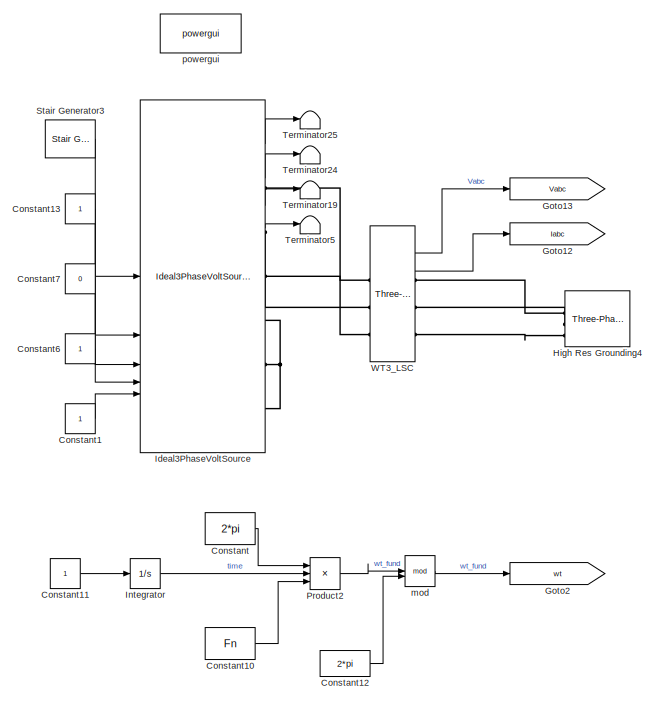
[diagram: root canvas - part 1/2, middle left region]
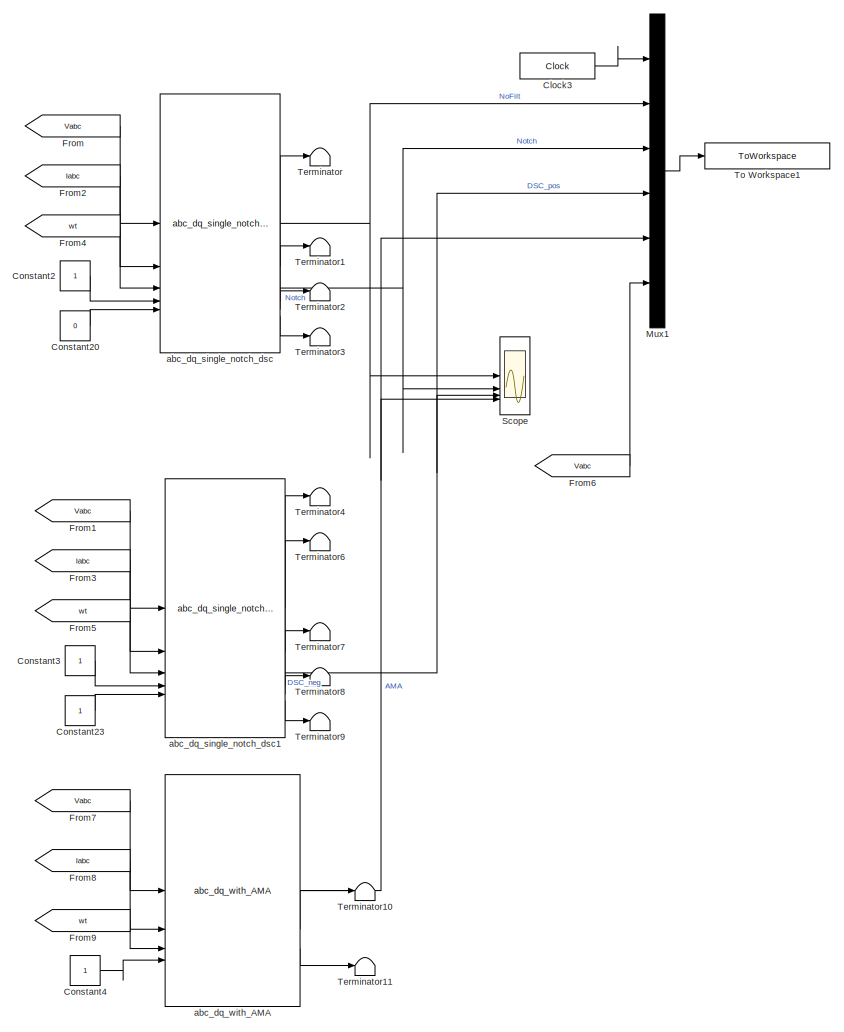
[diagram: root canvas - part 2/2, right side, full height]
MODEL slx_d988a26c9a00
KIND model
CONFIG AbsTol = auto
CONFIG EnableMultiTasking = off
CONFIG FixedStep = Ts
CONFIG MaxStep = auto
CONFIG MinStep = auto
CONFIG RelTol = 1e-3
CONFIG SampleTimeConstraint = Unconstrained
CONFIG SolverName = ode8
CONFIG StartTime = 0.0
CONFIG StopTime = Ttot
BLOCK [Clock] Clock3
  Decimation = 1
  DisplayTime = on
BLOCK [Constant] Constant
  Value = 2*pi
BLOCK [Constant] Constant1
BLOCK [Constant] Constant10
  Value = Fn
BLOCK [Constant] Constant11
BLOCK [Constant] Constant12
  Value = 2*pi
BLOCK [Constant] Constant13
BLOCK [Constant] Constant2
BLOCK [Constant] Constant20
  Value = 0
BLOCK [Constant] Constant23
BLOCK [Constant] Constant3
BLOCK [Constant] Constant4
BLOCK [Constant] Constant6
BLOCK [Constant] Constant7
  Value = 0
BLOCK [From] From
  GotoTag = Vabc
BLOCK [From] From1
  GotoTag = Vabc
BLOCK [From] From2
  GotoTag = Iabc
BLOCK [From] From3
  GotoTag = Iabc
BLOCK [From] From4
  GotoTag = wt
BLOCK [From] From5
  GotoTag = wt
BLOCK [From] From6
  GotoTag = Vabc
BLOCK [From] From7
  GotoTag = Vabc
BLOCK [From] From8
  GotoTag = Iabc
BLOCK [From] From9
  GotoTag = wt
BLOCK [Goto] Goto12
  GotoTag = Iabc
BLOCK [Goto] Goto13
  GotoTag = Vabc
BLOCK [Goto] Goto2
  GotoTag = wt
BLOCK [Reference] High Res Grounding4  REF=spsThreePhaseParallelRLCLoadLib/Three-Phase
Parallel RLC Load
  AttributesFormatString = \n
  LibrarySourceBlock = sps_lib/Passives/Three-Phase\nParallel RLC Load
  NameLocation = top
  SourceBlock = spsThreePhaseParallelRLCLoadLib/Three-Phase\nParallel RLC Load
  SourceType = Three-Phase Parallel RLC Load
BLOCK [Reference] Ideal3PhaseVoltSource  REF=DSCdq_Library/Ideal3PhaseVoltSource
  SourceBlock = DSCdq_Library/Ideal3PhaseVoltSource
  SourceType = Three-phase ideal voltage source
BLOCK [Integrator] Integrator
BLOCK [Mux] Mux1
  DisplayOption = bar
  Inputs = 6
BLOCK [Product] Product2
  Inputs = 3
BLOCK [Scope] Scope
  Floating = off
  NumInputPorts = 4
  ScopeSpecificationString = Simulink.scopes.TimeScopeBlockCfg('CurrentConfiguration', extmgr.ConfigurationSet(extmgr.Configuration('Core','General UI',true),extmgr.Configuration('Core','Source UI',true),extmgr.Configuration('Sources','WiredSimulink',true),extmgr.Configuration('Visuals','Time Domain',true,'SerializedDisplays',{struct('MinYLimReal','-0.52811','MaxYLimReal','1.16979','YLabelReal','','MinYLimMag','0.00000','MaxY...<+1500ch>
BLOCK [Reference] Stair Generator3  REF=spsStairGeneratorLib/Stair
Generator
  LibrarySourceBlock = sps_lib/Sources/Signal Generator Sources/Stair\nGenerator
  SourceBlock = spsStairGeneratorLib/Stair\nGenerator
  SourceType = Stair Generator
BLOCK [Terminator] Terminator
BLOCK [Terminator] Terminator1
BLOCK [Terminator] Terminator10
BLOCK [Terminator] Terminator11
BLOCK [Terminator] Terminator19
BLOCK [Terminator] Terminator2
BLOCK [Terminator] Terminator24
BLOCK [Terminator] Terminator25
BLOCK [Terminator] Terminator3
BLOCK [Terminator] Terminator4
BLOCK [Terminator] Terminator5
BLOCK [Terminator] Terminator6
BLOCK [Terminator] Terminator7
BLOCK [Terminator] Terminator8
BLOCK [Terminator] Terminator9
BLOCK [ToWorkspace] To Workspace1
  FixptAsFi = on
  MaxDataPoints = inf
  SampleTime = Ts_control
  Save2DSignal = 2-D array (concatenate along first dimension)
  VariableName = ShortPulse_Raw
BLOCK [Reference] WT3_LSC  REF=spsThreePhaseVIMeasurementLib/Three-Phase
V-I Measurement
  LibrarySourceBlock = sps_lib/Sensors and Measurements/Three-Phase\nV-I Measurement
  SourceBlock = spsThreePhaseVIMeasurementLib/Three-Phase\nV-I Measurement
  SourceType = Three-Phase VI Measurement
BLOCK [Reference] abc_dq_single_notch_dsc  REF=DSCdq_Library/abc_dq_single_notch_dsc
  SourceBlock = DSCdq_Library/abc_dq_single_notch_dsc
  SourceType = abc->dq with Matlab
BLOCK [Reference] abc_dq_single_notch_dsc1  REF=DSCdq_Library/abc_dq_single_notch_dsc
  SourceBlock = DSCdq_Library/abc_dq_single_notch_dsc
  SourceType = abc->dq with Matlab
BLOCK [Reference] abc_dq_with_AMA  REF=PhD_Library/Offshore_Oil_and_Wind/abc_dq_with_AMA
  SourceBlock = PhD_Library/Offshore_Oil_and_Wind/abc_dq_with_AMA
  SourceType = abc->dq with Matlab
BLOCK [Math] mod
  Operator = mod
  SignedPower = on
BLOCK [Reference] powergui  REF=sps_lib/powergui
  Priority = 1
  SourceBlock = sps_lib/powergui
  SourceType = PSB option menu block
LINE Clock3:1 -> Mux1:1
LINE Constant10:1 -> Product2:3
LINE Constant11:1 -> Integrator:1
LINE Constant12:1 -> mod:2
LINE Constant13:1 -> Ideal3PhaseVoltSource:2
LINE Constant1:1 -> Ideal3PhaseVoltSource:5
LINE Constant20:1 -> abc_dq_single_notch_dsc:5
LINE Constant23:1 -> abc_dq_single_notch_dsc1:5
LINE Constant2:1 -> abc_dq_single_notch_dsc:4
LINE Constant3:1 -> abc_dq_single_notch_dsc1:4
LINE Constant4:1 -> abc_dq_with_AMA:4
LINE Constant6:1 -> Ideal3PhaseVoltSource:4
LINE Constant7:1 -> Ideal3PhaseVoltSource:3
LINE Constant:1 -> Product2:1
LINE From1:1 -> abc_dq_single_notch_dsc1:1
LINE From2:1 -> abc_dq_single_notch_dsc:2
LINE From3:1 -> abc_dq_single_notch_dsc1:2
LINE From4:1 -> abc_dq_single_notch_dsc:3
LINE From5:1 -> abc_dq_single_notch_dsc1:3
LINE From6:1 -> Mux1:6
LINE From7:1 -> abc_dq_with_AMA:1
LINE From8:1 -> abc_dq_with_AMA:2
LINE From9:1 -> abc_dq_with_AMA:3
LINE From:1 -> abc_dq_single_notch_dsc:1
LINE Ideal3PhaseVoltSource:1 -> Terminator25:1
LINE Ideal3PhaseVoltSource:2 -> Terminator24:1
LINE Ideal3PhaseVoltSource:3 -> Terminator19:1
LINE Ideal3PhaseVoltSource:4 -> Terminator5:1
LINE Integrator:1 -> Product2:2
LINE Mux1:1 -> To Workspace1:1
LINE Product2:1 -> mod:1
LINE Stair Generator3:1 -> Ideal3PhaseVoltSource:1
LINE WT3_LSC:1 -> Goto13:1
LINE WT3_LSC:2 -> Goto12:1
LINE abc_dq_single_notch_dsc1:1 -> Terminator4:1
LINE abc_dq_single_notch_dsc1:2 -> Terminator6:1
NET abc_dq_single_notch_dsc1:3 -> Mux1:4, Scope:3
LINE abc_dq_single_notch_dsc1:4 -> Terminator7:1
LINE abc_dq_single_notch_dsc1:5 -> Terminator8:1
LINE abc_dq_single_notch_dsc1:6 -> Terminator9:1
NET abc_dq_single_notch_dsc:1 -> Mux1:2, Scope:1
LINE abc_dq_single_notch_dsc:2 -> Terminator:1
NET abc_dq_single_notch_dsc:3 -> Mux1:3, Scope:2
LINE abc_dq_single_notch_dsc:4 -> Terminator1:1
LINE abc_dq_single_notch_dsc:5 -> Terminator2:1
LINE abc_dq_single_notch_dsc:6 -> Terminator3:1
NET abc_dq_with_AMA:1 -> Mux1:5, Scope:4
LINE abc_dq_with_AMA:2 -> Terminator10:1
LINE abc_dq_with_AMA:3 -> Terminator11:1
LINE mod:1 -> Goto2:1
PLINE High Res Grounding4:LConn1 -- WT3_LSC:RConn1
PLINE High Res Grounding4:LConn2 -- WT3_LSC:RConn2
PLINE High Res Grounding4:LConn3 -- WT3_LSC:RConn3
PLINE Ideal3PhaseVoltSource:RConn1 -- WT3_LSC:LConn1
PLINE Ideal3PhaseVoltSource:RConn2 -- WT3_LSC:LConn2
PLINE Ideal3PhaseVoltSource:RConn3 -- WT3_LSC:LConn3
PNET net1: Ideal3PhaseVoltSource:RConn4 -- Ideal3PhaseVoltSource:RConn5 -- Ideal3PhaseVoltSource:RConn6
note: NET lines group one-source signal fan-out (src -> all destinations, sorted); 1:1 wires keep LINE; PNET lines group multi-terminal physical nets as a canonical sorted terminal list (undirected conserving connections); 2-terminal nets keep the pairwise PLINE form
